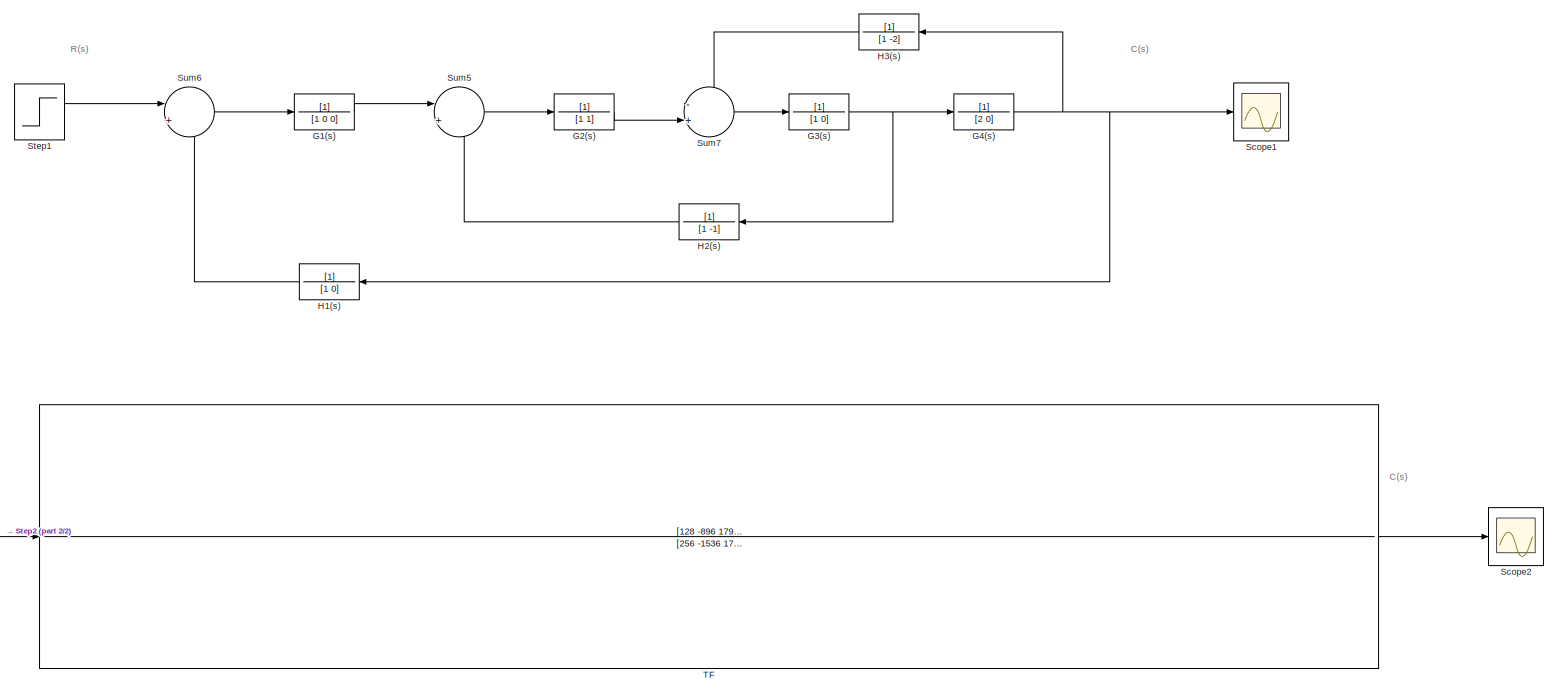
[diagram: root canvas - part 1/2, most of the canvas]
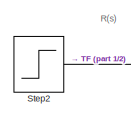
[diagram: root canvas - part 2/2, bottom left region]
MODEL slx_d840b0e38379
KIND model
CONFIG AbsTol = auto
CONFIG EnableMultiTasking = off
CONFIG FixedStep = auto
CONFIG MaxStep = auto
CONFIG MinStep = auto
CONFIG RelTol = 1e-3
CONFIG SampleTimeConstraint = Unconstrained
CONFIG SolverName = VariableStepAuto
CONFIG StartTime = 0.0
CONFIG StopTime = 1
BLOCK [TransferFcn] G1(s)
  Denominator = [1 0 0]
BLOCK [TransferFcn] G2(s)
  Denominator = [1 1]
BLOCK [TransferFcn] G3(s)
  Denominator = [1 0]
BLOCK [TransferFcn] G4(s)
  Denominator = [2 0]
BLOCK [TransferFcn] H1(s)
  Denominator = [1 0]
BLOCK [TransferFcn] H2(s)
  Denominator = [1 -1]
BLOCK [TransferFcn] H3(s)
  Denominator = [1 -2]
BLOCK [Scope] Scope1
  Floating = off
  NumInputPorts = 1
  ScopeSpecificationString = Simulink.scopes.TimeScopeBlockCfg('CurrentConfiguration', extmgr.ConfigurationSet(extmgr.Configuration('Core','General UI',true),extmgr.Configuration('Core','Source UI',true),extmgr.Configuration('Sources','WiredSimulink',true,'DataLoggingVariableName','ScopeData1'),extmgr.Configuration('Visuals','Time Domain',true,'SerializedDisplays',{struct('MinYLimReal','-0.00044','MaxYLimReal','0.00398','YLab...<+1398ch>
BLOCK [Scope] Scope2
  Floating = off
  NumInputPorts = 1
  ScopeSpecificationString = Simulink.scopes.TimeScopeBlockCfg('CurrentConfiguration', extmgr.ConfigurationSet(extmgr.Configuration('Core','General UI',true),extmgr.Configuration('Core','Source UI',true),extmgr.Configuration('Sources','WiredSimulink',true),extmgr.Configuration('Visuals','Time Domain',true,'SerializedDisplays',{struct('MinYLimReal','-0.00044','MaxYLimReal','0.00398','YLabelReal','','MinYLimMag','0.00000','MaxY...<+1383ch>
BLOCK [Step] Step1
  SampleTime = 0
  Time = 0
BLOCK [Step] Step2
  SampleTime = 0
  Time = 0
BLOCK [Sum] Sum5
  Inputs = |+-
BLOCK [Sum] Sum6
  Inputs = |+-
BLOCK [Sum] Sum7
  Inputs = -+|
BLOCK [TransferFcn] TF
  Denominator = [256 -1536 1792 6144 -15616 -2048 36608 -23680 -32640 42816 3264 -27776 11248 7872 -8144 -336 4448 -800 -304 144 -144 -32 0 0 0 0 0 0 0 0 0 0]
  Numerator = [128 -896 1792 1088 -7872 5888 8928 -13792 -1024 10480 -3088 -3200 1280 464 -144 -32 0 0 0 0 0 0 0 0 0 0 0]
ANNOTATION (root): C(s)
ANNOTATION (root): R(s)
LINE G1(s):1 -> Sum5:1
LINE G2(s):1 -> Sum7:2
NET G3(s):1 -> G4(s):1, H2(s):1
NET G4(s):1 -> H1(s):1, H3(s):1, Scope1:1
LINE H1(s):1 -> Sum6:2
LINE H2(s):1 -> Sum5:2
LINE H3(s):1 -> Sum7:1
LINE Step1:1 -> Sum6:1
LINE Step2:1 -> TF:1
LINE Sum5:1 -> G2(s):1
LINE Sum6:1 -> G1(s):1
LINE Sum7:1 -> G3(s):1
LINE TF:1 -> Scope2:1
note: NET lines group one-source signal fan-out (src -> all destinations, sorted); 1:1 wires keep LINE
